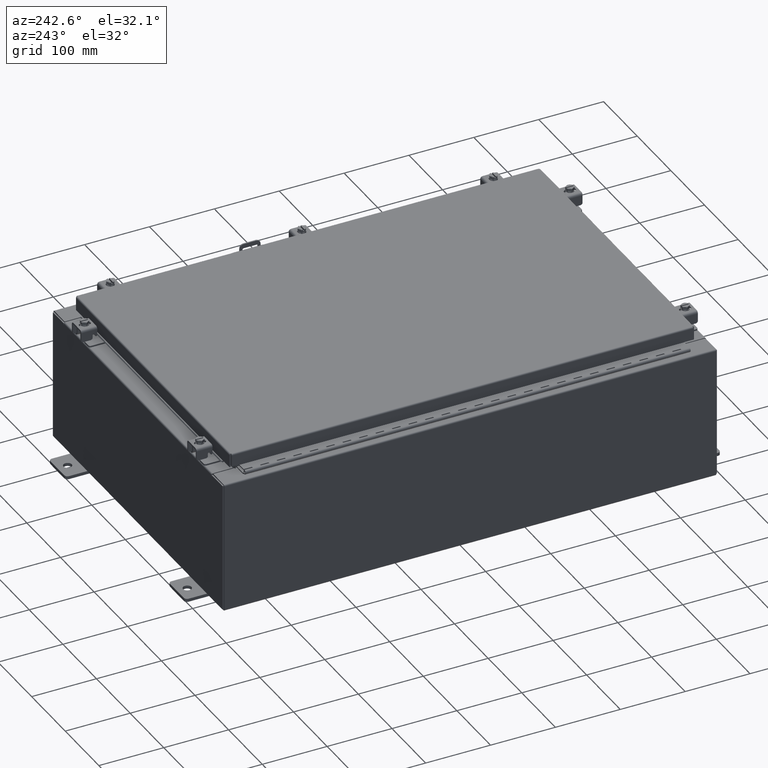
[diagram: clean part render]
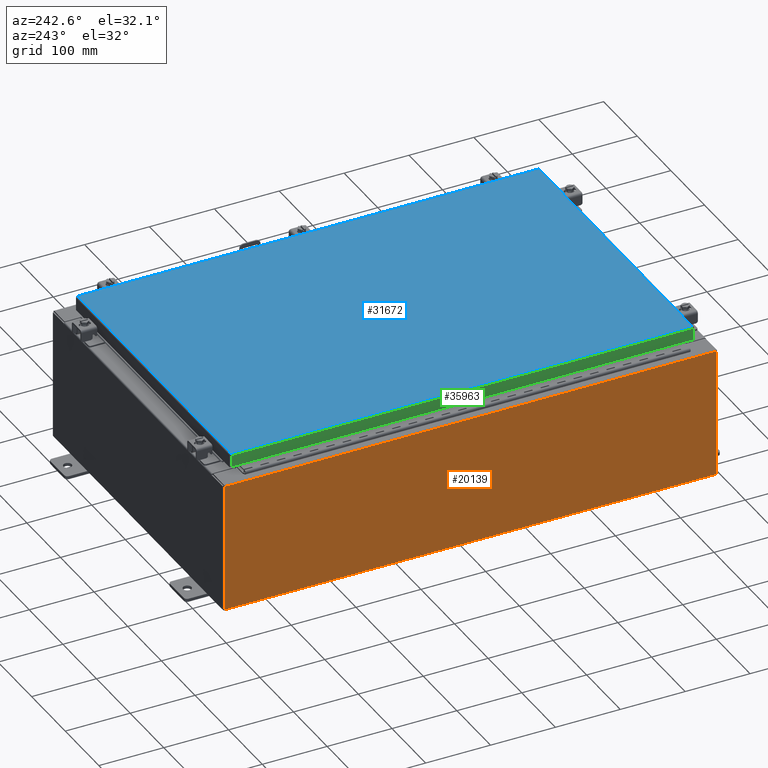
[diagram: same view with three faces highlighted in distinct colors, each labeled with its STEP entity id]
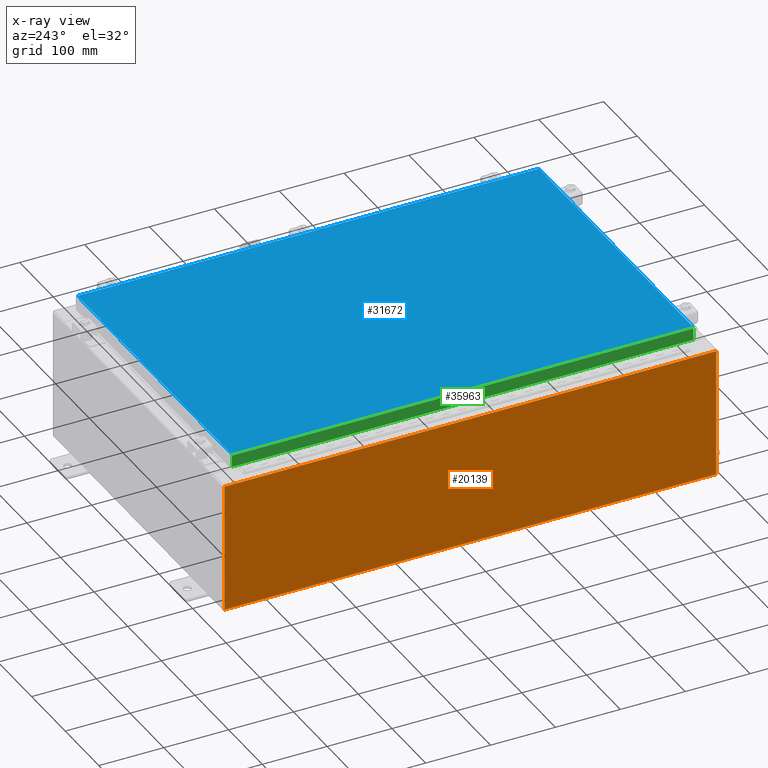
[diagram: x-ray of the same camera — body ghosted, the three highlighted faces saturated]
A machine part, auxiliary view with three faces highlighted in distinct colors.
The next image is the same camera in x-ray (body ghosted, the three faces saturated) — at least one of them is partly hidden behind the body in this view.
Their STEP definitions:

[orange] entity #20139 — the highlighted planar face has unit normal (1, 0, 0).
#1101 = EDGE_CURVE ( 'NONE', #4200, #10606, #37523, .T. ) ;
#1862 = CARTESIAN_POINT ( 'NONE',  ( -10.00000000000000000, -14.92529999999999600, 0.01299999999999985200 ) ) ;
#1899 = DIRECTION ( 'NONE',  ( 3.584876173029202900E-015, 0.0000000000000000000, -1.000000000000000000 ) ) ;
#2929 = CARTESIAN_POINT ( 'NONE',  ( -10.00000000000002800, -14.92529999999999600, 7.837599999999999200 ) ) ;
#3011 = DIRECTION ( 'NONE',  ( 0.0000000000000000000, 1.000000000000000000, 0.0000000000000000000 ) ) ;
#3075 = FACE_OUTER_BOUND ( 'NONE', #4526, .T. ) ;
#4200 = VERTEX_POINT ( 'NONE', #2929 ) ;
#4526 = EDGE_LOOP ( 'NONE', ( #25464, #24084, #17725, #33832 ) ) ;
#6471 = EDGE_CURVE ( 'NONE', #14514, #9426, #35015, .T. ) ;
#6795 = LINE ( 'NONE', #14652, #36996 ) ;
#7847 = CARTESIAN_POINT ( 'NONE',  ( -10.00000000000000000, 14.92530000000000500, -3.611161566624948200E-014 ) ) ;
#9426 = VERTEX_POINT ( 'NONE', #27043 ) ;
#10241 = PLANE ( 'NONE',  #34591 ) ;
#10606 = VERTEX_POINT ( 'NONE', #19671 ) ;
#11691 = VECTOR ( 'NONE', #32834, 39.37007874015748100 ) ;
#13146 = EDGE_CURVE ( 'NONE', #10606, #9426, #26930, .T. ) ;
#14514 = VERTEX_POINT ( 'NONE', #1862 ) ;
#14652 = CARTESIAN_POINT ( 'NONE',  ( -10.00000000000000000, -14.92529999999999600, -3.611161566624948200E-014 ) ) ;
#14672 = CARTESIAN_POINT ( 'NONE',  ( -10.00000000000002800, -14.92529999999999600, 7.837599999999999200 ) ) ;
#15371 = CARTESIAN_POINT ( 'NONE',  ( -10.00000000000000000, 14.92530000000000500, 0.01299999999999985200 ) ) ;
#16127 = DIRECTION ( 'NONE',  ( 3.584876173029202900E-015, 0.0000000000000000000, -1.000000000000000000 ) ) ;
#17725 = ORIENTED_EDGE ( 'NONE', *, *, #6471, .F. ) ;
#19195 = VECTOR ( 'NONE', #1899, 39.37007874015748100 ) ;
#19581 = EDGE_CURVE ( 'NONE', #14514, #4200, #6795, .T. ) ;
#19671 = CARTESIAN_POINT ( 'NONE',  ( -10.00000000000002800, 14.92530000000000500, 7.837599999999999200 ) ) ;
#20139 = ADVANCED_FACE ( 'NONE', ( #3075 ), #10241, .F. ) ;
#23449 = DIRECTION ( 'NONE',  ( -3.584876173029202900E-015, 0.0000000000000000000, 1.000000000000000000 ) ) ;
#24084 = ORIENTED_EDGE ( 'NONE', *, *, #13146, .T. ) ;
#25464 = ORIENTED_EDGE ( 'NONE', *, *, #1101, .T. ) ;
#26730 = VECTOR ( 'NONE', #3011, 39.37007874015748100 ) ;
#26930 = LINE ( 'NONE', #7847, #19195 ) ;
#27043 = CARTESIAN_POINT ( 'NONE',  ( -10.00000000000000000, 14.92530000000000500, 0.01299999999999983500 ) ) ;
#30635 = CARTESIAN_POINT ( 'NONE',  ( -10.00000000000000000, 0.0000000000000000000, -3.611161566624948200E-014 ) ) ;
#32834 = DIRECTION ( 'NONE',  ( -0.0000000000000000000, 1.000000000000000000, -0.0000000000000000000 ) ) ;
#33618 = DIRECTION ( 'NONE',  ( 1.000000000000000000, 0.0000000000000000000, 3.584876173029202900E-015 ) ) ;
#33832 = ORIENTED_EDGE ( 'NONE', *, *, #19581, .T. ) ;
#34591 = AXIS2_PLACEMENT_3D ( 'NONE', #30635, #33618, #16127 ) ;
#35015 = LINE ( 'NONE', #15371, #11691 ) ;
#36996 = VECTOR ( 'NONE', #23449, 39.37007874015748100 ) ;
#37523 = LINE ( 'NONE', #14672, #26730 ) ;

[blue] entity #31672 — the highlighted planar face has unit normal (0, 0, -1).
#1136 = EDGE_CURVE ( 'NONE', #7676, #25028, #3419, .T. ) ;
#1755 = CARTESIAN_POINT ( 'NONE',  ( 8.990300000000001300, 14.00629999999999800, 0.0000000000000000000 ) ) ;
#1894 = EDGE_LOOP ( 'NONE', ( #24991, #32406, #30191, #6474 ) ) ;
#3132 = DIRECTION ( 'NONE',  ( -1.000000000000000000, -0.0000000000000000000, -0.0000000000000000000 ) ) ;
#3419 = LINE ( 'NONE', #29313, #25844 ) ;
#5173 = EDGE_CURVE ( 'NONE', #25028, #15391, #31425, .T. ) ;
#6015 = PLANE ( 'NONE',  #22265 ) ;
#6474 = ORIENTED_EDGE ( 'NONE', *, *, #5173, .T. ) ;
#7676 = VERTEX_POINT ( 'NONE', #1755 ) ;
#11584 = CARTESIAN_POINT ( 'NONE',  ( -8.990299999999997700, 14.00630000000000100, 0.0000000000000000000 ) ) ;
#11907 = DIRECTION ( 'NONE',  ( 0.0000000000000000000, 0.0000000000000000000, -1.000000000000000000 ) ) ;
#13403 = LINE ( 'NONE', #21497, #28004 ) ;
#15391 = VERTEX_POINT ( 'NONE', #18192 ) ;
#15731 = CARTESIAN_POINT ( 'NONE',  ( -8.990299999999997700, 14.00630000000000100, 0.0000000000000000000 ) ) ;
#15766 = DIRECTION ( 'NONE',  ( 1.000000000000000000, -0.0000000000000000000, -0.0000000000000000000 ) ) ;
#17274 = VECTOR ( 'NONE', #15766, 39.37007874015748100 ) ;
#18192 = CARTESIAN_POINT ( 'NONE',  ( -8.990299999999997700, -14.00629999999999800, 2.185478394931410600E-015 ) ) ;
#18554 = DIRECTION ( 'NONE',  ( 0.0000000000000000000, 1.000000000000000000, 0.0000000000000000000 ) ) ;
#21497 = CARTESIAN_POINT ( 'NONE',  ( 8.990300000000001300, -14.00629999999999800, -1.092739197465705300E-015 ) ) ;
#22265 = AXIS2_PLACEMENT_3D ( 'NONE', #29372, #11907, #32326 ) ;
#23417 = EDGE_CURVE ( 'NONE', #33692, #7676, #13403, .T. ) ;
#23676 = VECTOR ( 'NONE', #29060, 39.37007874015748100 ) ;
#24427 = CARTESIAN_POINT ( 'NONE',  ( -8.990299999999996000, -14.00629999999999800, 2.185478394931410600E-015 ) ) ;
#24991 = ORIENTED_EDGE ( 'NONE', *, *, #36201, .T. ) ;
#25028 = VERTEX_POINT ( 'NONE', #15731 ) ;
#25844 = VECTOR ( 'NONE', #3132, 39.37007874015748100 ) ;
#27186 = CARTESIAN_POINT ( 'NONE',  ( 8.990300000000001300, -14.00629999999999800, -1.092739197465705300E-015 ) ) ;
#27560 = FACE_OUTER_BOUND ( 'NONE', #1894, .T. ) ;
#28004 = VECTOR ( 'NONE', #18554, 39.37007874015748100 ) ;
#29060 = DIRECTION ( 'NONE',  ( 0.0000000000000000000, -1.000000000000000000, 0.0000000000000000000 ) ) ;
#29313 = CARTESIAN_POINT ( 'NONE',  ( 8.990300000000001300, 14.00629999999999800, 0.0000000000000000000 ) ) ;
#29372 = CARTESIAN_POINT ( 'NONE',  ( 0.0000000000000000000, 0.0000000000000000000, 0.0000000000000000000 ) ) ;
#30191 = ORIENTED_EDGE ( 'NONE', *, *, #1136, .T. ) ;
#31425 = LINE ( 'NONE', #11584, #23676 ) ;
#31672 = ADVANCED_FACE ( 'NONE', ( #27560 ), #6015, .F. ) ;
#32326 = DIRECTION ( 'NONE',  ( -1.000000000000000000, 0.0000000000000000000, -0.0000000000000000000 ) ) ;
#32406 = ORIENTED_EDGE ( 'NONE', *, *, #23417, .T. ) ;
#32778 = LINE ( 'NONE', #24427, #17274 ) ;
#33692 = VERTEX_POINT ( 'NONE', #27186 ) ;
#36201 = EDGE_CURVE ( 'NONE', #15391, #33692, #32778, .T. ) ;

[green] entity #35963 — the highlighted planar face has unit normal (1, 0, -0).
#120 = DIRECTION ( 'NONE',  ( 1.000000000000000000, 3.675660434206576600E-031, -3.034122441942816500E-015 ) ) ;
#3970 = DIRECTION ( 'NONE',  ( -3.034122441942816500E-015, 6.982962677686265900E-015, -1.000000000000000000 ) ) ;
#4476 = ORIENTED_EDGE ( 'NONE', *, *, #13088, .F. ) ;
#4908 = ORIENTED_EDGE ( 'NONE', *, *, #23432, .T. ) ;
#7191 = DIRECTION ( 'NONE',  ( -4.379057701015054300E-047, 1.000000000000000000, 1.211441035930299800E-016 ) ) ;
#8121 = VERTEX_POINT ( 'NONE', #18756 ) ;
#9282 = EDGE_LOOP ( 'NONE', ( #25796, #4908, #20171, #4476 ) ) ;
#10405 = DIRECTION ( 'NONE',  ( -3.034122441942816500E-015, 6.982962677686265900E-015, -1.000000000000000000 ) ) ;
#10670 = LINE ( 'NONE', #15901, #33030 ) ;
#11794 = FACE_OUTER_BOUND ( 'NONE', #9282, .T. ) ;
#11807 = PLANE ( 'NONE',  #25545 ) ;
#13088 = EDGE_CURVE ( 'NONE', #36401, #31350, #15101, .T. ) ;
#13936 = VECTOR ( 'NONE', #36431, 39.37007874015748100 ) ;
#15101 = LINE ( 'NONE', #22134, #35661 ) ;
#15901 = CARTESIAN_POINT ( 'NONE',  ( -9.077999999999999400, -14.09399999999999600, -0.7949999999999996000 ) ) ;
#18756 = CARTESIAN_POINT ( 'NONE',  ( -9.077999999999999400, 14.00515786437627400, -0.7949999999999962700 ) ) ;
#18907 = CARTESIAN_POINT ( 'NONE',  ( -9.077999999999997600, -14.09399999999999600, -0.08770000000000026400 ) ) ;
#20171 = ORIENTED_EDGE ( 'NONE', *, *, #23486, .F. ) ;
#20607 = DIRECTION ( 'NONE',  ( -3.034122441942816500E-015, 0.0000000000000000000, -1.000000000000000000 ) ) ;
#22134 = CARTESIAN_POINT ( 'NONE',  ( -9.077999999999997600, -14.00515786437626500, -0.07470000000000015500 ) ) ;
#22607 = LINE ( 'NONE', #18907, #13936 ) ;
#23432 = EDGE_CURVE ( 'NONE', #32273, #8121, #28908, .T. ) ;
#23486 = EDGE_CURVE ( 'NONE', #31350, #8121, #10670, .T. ) ;
#24710 = CARTESIAN_POINT ( 'NONE',  ( -9.077999999999999400, -14.00515786437626200, -0.7949999999999996000 ) ) ;
#25545 = AXIS2_PLACEMENT_3D ( 'NONE', #29271, #120, #20607 ) ;
#25796 = ORIENTED_EDGE ( 'NONE', *, *, #31917, .F. ) ;
#27332 = CARTESIAN_POINT ( 'NONE',  ( -9.077999999999997600, 14.00515786437626900, 1.256650077085561100E-013 ) ) ;
#28908 = LINE ( 'NONE', #27332, #35797 ) ;
#29271 = CARTESIAN_POINT ( 'NONE',  ( -9.077999999999997600, 0.0000000000000000000, 2.731847993664263300E-014 ) ) ;
#31039 = CARTESIAN_POINT ( 'NONE',  ( -9.077999999999997600, -14.00515786437626400, -0.08770000000000026400 ) ) ;
#31350 = VERTEX_POINT ( 'NONE', #24710 ) ;
#31917 = EDGE_CURVE ( 'NONE', #32273, #36401, #22607, .T. ) ;
#32273 = VERTEX_POINT ( 'NONE', #33194 ) ;
#33030 = VECTOR ( 'NONE', #7191, 39.37007874015748100 ) ;
#33194 = CARTESIAN_POINT ( 'NONE',  ( -9.077999999999997600, 14.00515786437626900, -0.08770000000000026400 ) ) ;
#35661 = VECTOR ( 'NONE', #10405, 39.37007874015748100 ) ;
#35797 = VECTOR ( 'NONE', #3970, 39.37007874015748100 ) ;
#35963 = ADVANCED_FACE ( 'NONE', ( #11794 ), #11807, .F. ) ;
#36401 = VERTEX_POINT ( 'NONE', #31039 ) ;
#36431 = DIRECTION ( 'NONE',  ( 3.675660434206577100E-031, -1.000000000000000000, -1.083515668565077200E-045 ) ) ;